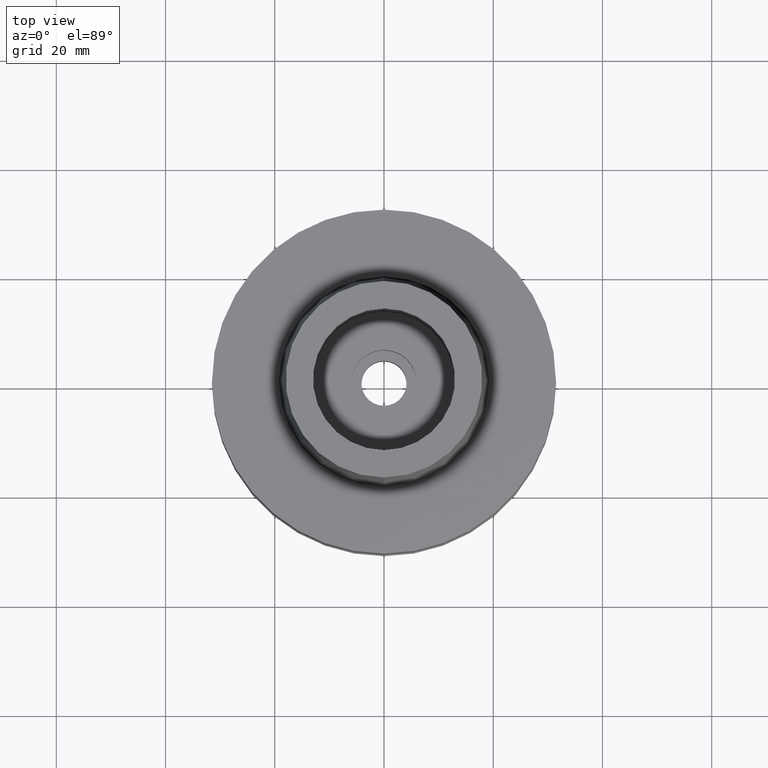
[diagram: clean part render]
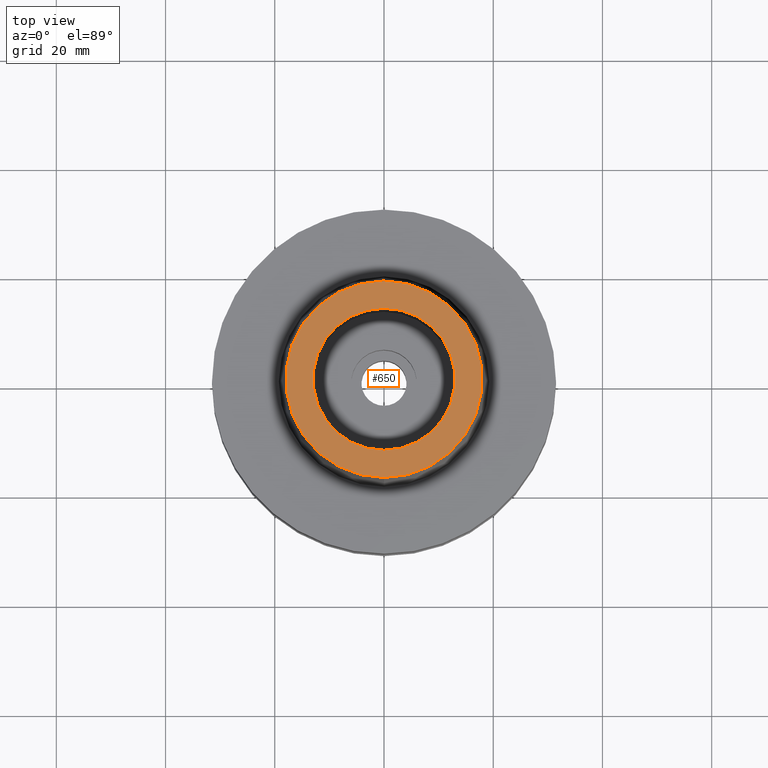
[diagram: same view with one face highlighted and labeled with its STEP entity id]
A machine part, top view. The second image highlights one B-rep face of the part: STEP entity #650.
In plain terms, the highlighted planar face has unit normal (0, 0, 1).
Its self-contained STEP definition (entity closure, byte-faithful):
#1 = DIRECTION ( 'NONE',  ( 0.0000000000000000000, 0.0000000000000000000, 1.000000000000000000 ) ) ;
#6 = AXIS2_PLACEMENT_3D ( 'NONE', #475, #2256, #293 ) ;
#95 = CIRCLE ( 'NONE', #2568, 13.00000000000000000 ) ;
#136 = EDGE_CURVE ( 'NONE', #1746, #2371, #1766, .T. ) ;
#149 = ORIENTED_EDGE ( 'NONE', *, *, #1827, .F. ) ;
#162 = EDGE_LOOP ( 'NONE', ( #149, #231 ) ) ;
#179 = PLANE ( 'NONE',  #715 ) ;
#231 = ORIENTED_EDGE ( 'NONE', *, *, #1481, .F. ) ;
#242 = DIRECTION ( 'NONE',  ( 0.0000000000000000000, 1.000000000000000000, 0.0000000000000000000 ) ) ;
#293 = DIRECTION ( 'NONE',  ( 0.0000000000000000000, -1.000000000000000000, 0.0000000000000000000 ) ) ;
#403 = DIRECTION ( 'NONE',  ( 0.0000000000000000000, 0.0000000000000000000, 1.000000000000000000 ) ) ;
#426 = DIRECTION ( 'NONE',  ( 1.000000000000000000, 0.0000000000000000000, 0.0000000000000000000 ) ) ;
#468 = CIRCLE ( 'NONE', #6, 13.00000000000000000 ) ;
#475 = CARTESIAN_POINT ( 'NONE',  ( 0.0000000000000000000, 0.0000000000000000000, 25.00000000000000000 ) ) ;
#534 = CARTESIAN_POINT ( 'NONE',  ( 0.0000000000000000000, 18.00000182882000033, 25.00000000000000000 ) ) ;
#650 = ADVANCED_FACE ( 'NONE', ( #2133, #2601 ), #179, .T. ) ;
#715 = AXIS2_PLACEMENT_3D ( 'NONE', #1533, #1, #426 ) ;
#768 = CARTESIAN_POINT ( 'NONE',  ( 0.0000000000000000000, 0.0000000000000000000, 25.00000000000000000 ) ) ;
#939 = EDGE_CURVE ( 'NONE', #2371, #1746, #1180, .T. ) ;
#1146 = CARTESIAN_POINT ( 'NONE',  ( 0.0000000000000000000, 0.0000000000000000000, 25.00000000000000000 ) ) ;
#1180 = CIRCLE ( 'NONE', #1505, 18.00000182882000033 ) ;
#1281 = CARTESIAN_POINT ( 'NONE',  ( 0.0000000000000000000, 0.0000000000000000000, 25.00000000000000000 ) ) ;
#1310 = VERTEX_POINT ( 'NONE', #1493 ) ;
#1481 = EDGE_CURVE ( 'NONE', #1601, #1310, #468, .T. ) ;
#1493 = CARTESIAN_POINT ( 'NONE',  ( 0.0000000000000000000, 13.00000000000000000, 25.00000000000000000 ) ) ;
#1505 = AXIS2_PLACEMENT_3D ( 'NONE', #768, #2041, #1665 ) ;
#1533 = CARTESIAN_POINT ( 'NONE',  ( 0.0000000000000000000, 0.0000000000000000000, 25.00000000000000000 ) ) ;
#1601 = VERTEX_POINT ( 'NONE', #2684 ) ;
#1628 = AXIS2_PLACEMENT_3D ( 'NONE', #1146, #2209, #2423 ) ;
#1665 = DIRECTION ( 'NONE',  ( 0.0000000000000000000, -1.000000000000000000, 0.0000000000000000000 ) ) ;
#1746 = VERTEX_POINT ( 'NONE', #534 ) ;
#1766 = CIRCLE ( 'NONE', #1628, 18.00000182882000033 ) ;
#1827 = EDGE_CURVE ( 'NONE', #1310, #1601, #95, .T. ) ;
#2041 = DIRECTION ( 'NONE',  ( 0.0000000000000000000, 0.0000000000000000000, -1.000000000000000000 ) ) ;
#2133 = FACE_OUTER_BOUND ( 'NONE', #2528, .T. ) ;
#2209 = DIRECTION ( 'NONE',  ( 0.0000000000000000000, 0.0000000000000000000, -1.000000000000000000 ) ) ;
#2256 = DIRECTION ( 'NONE',  ( 0.0000000000000000000, 0.0000000000000000000, 1.000000000000000000 ) ) ;
#2371 = VERTEX_POINT ( 'NONE', #2720 ) ;
#2423 = DIRECTION ( 'NONE',  ( 0.0000000000000000000, 1.000000000000000000, 0.0000000000000000000 ) ) ;
#2528 = EDGE_LOOP ( 'NONE', ( #2606, #2588 ) ) ;
#2568 = AXIS2_PLACEMENT_3D ( 'NONE', #1281, #403, #242 ) ;
#2588 = ORIENTED_EDGE ( 'NONE', *, *, #939, .F. ) ;
#2601 = FACE_BOUND ( 'NONE', #162, .T. ) ;
#2606 = ORIENTED_EDGE ( 'NONE', *, *, #136, .F. ) ;
#2684 = CARTESIAN_POINT ( 'NONE',  ( 0.0000000000000000000, -13.00000000000000000, 25.00000000000000000 ) ) ;
#2720 = CARTESIAN_POINT ( 'NONE',  ( 0.0000000000000000000, -18.00000182882000033, 25.00000000000000000 ) ) ;